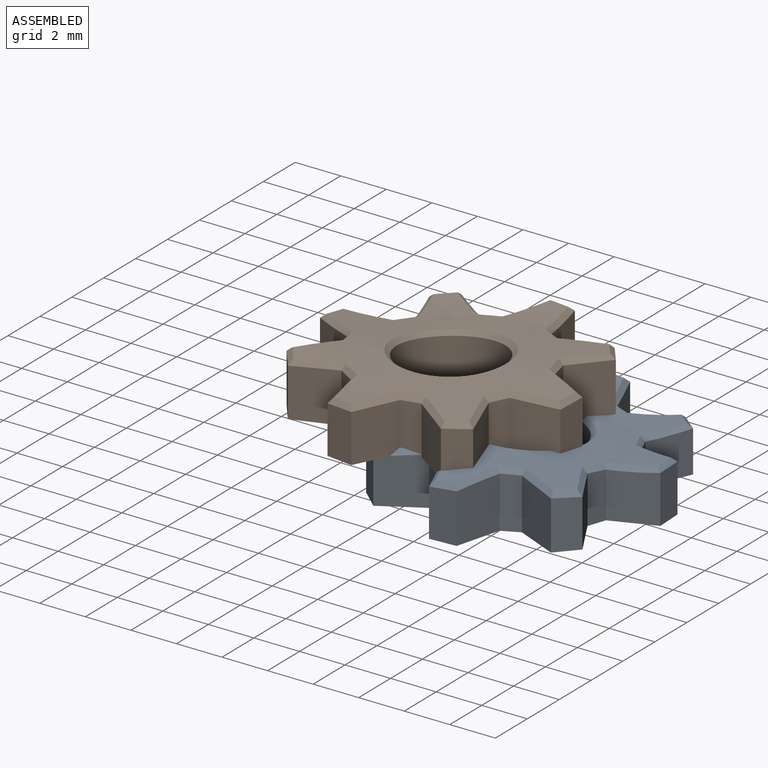
[diagram: assembled view]
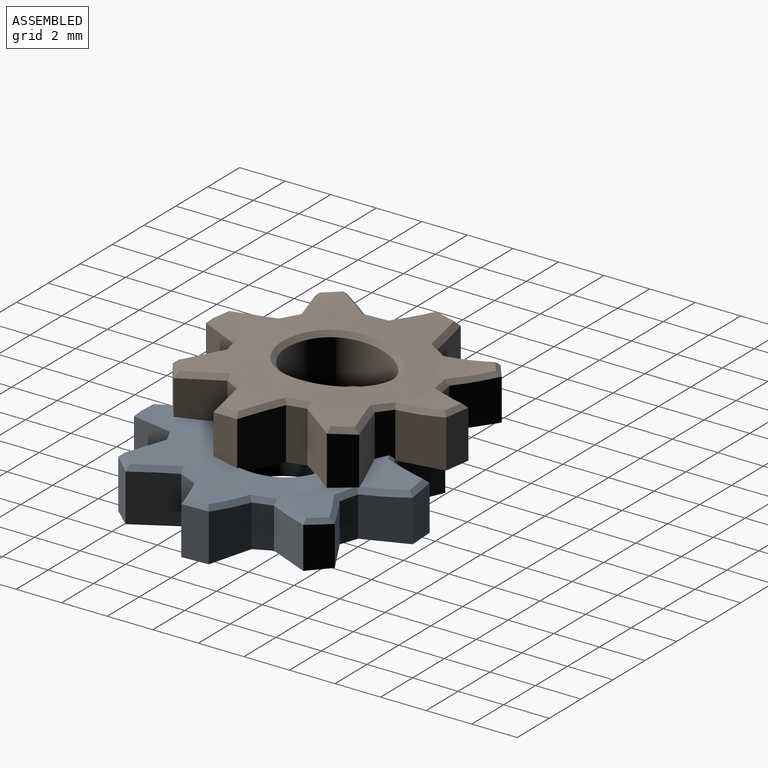
[diagram: assembled view, second angle]
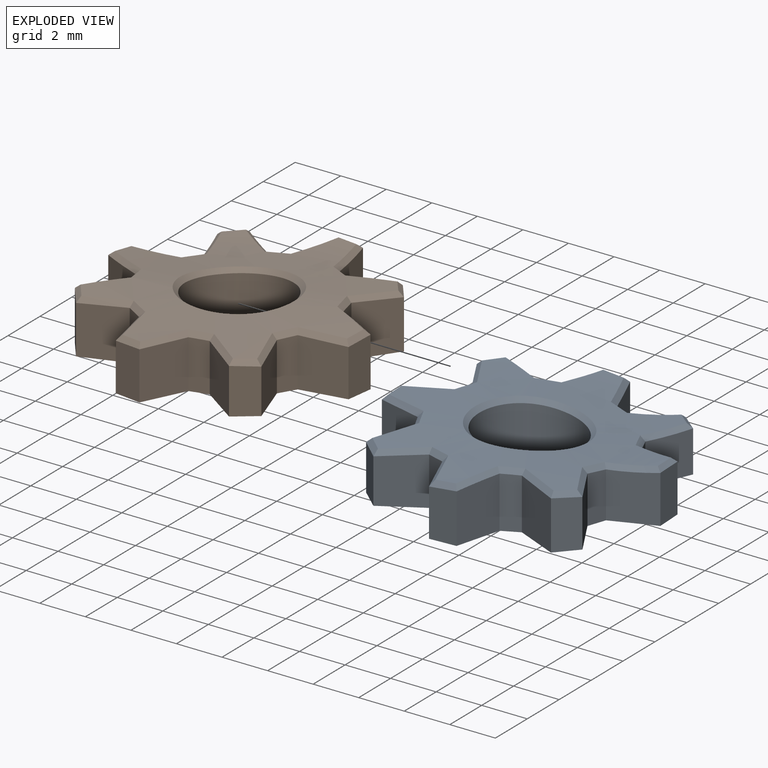
[diagram: exploded view]
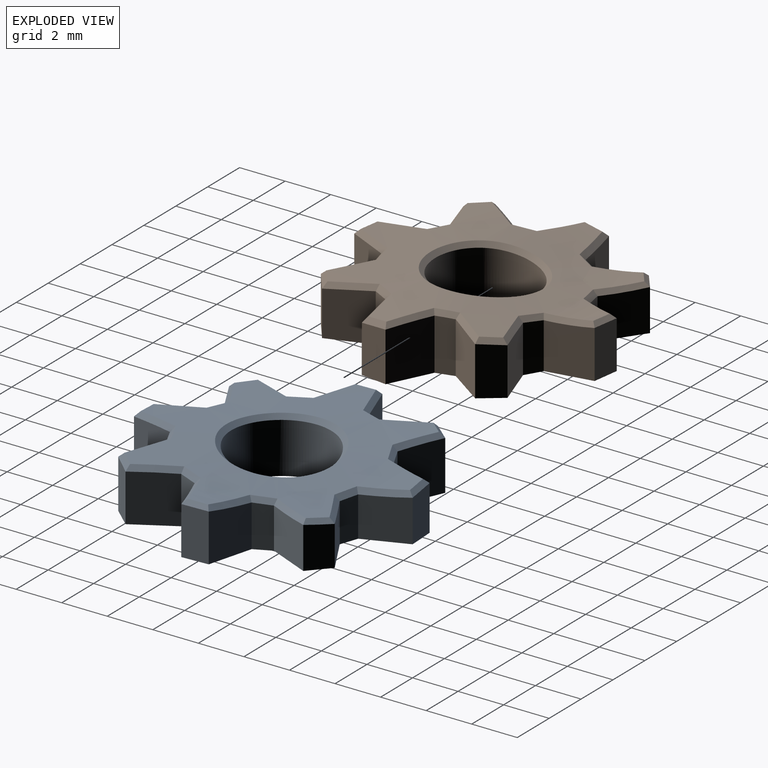
[diagram: exploded view, second angle]
FCSTD DOCUMENT  (FreeCAD 0.19R24212 (Git))
Label: logo 3d asm4
License: Creative Commons Attribution
LicenseURL: http://creativecommons.org/licenses/by/4.0/
objects: PartDesign::CoordinateSystem×5, Part::Feature×3, App::DocumentObjectGroup×2, App::FeaturePython×1, Sketcher::SketchObject×1, App::Link×1, PartDesign::FeatureBase×1, App::Part×1, PartDesign::Body×1
note: 11 computed .brp shape members not serialized (recipe doc carries the construction recipe); baked Part::Feature solids carry a one-line shape summary decoded from their .brp

FEATURE [PartDesign::CoordinateSystem] LCS_Origin
  AttacherType = Attacher::AttachEngine3D
  MapMode = 2
  Support = -> [X_Axis]
FEATURE [App::DocumentObjectGroup] Constraints
FEATURE [App::FeaturePython] Variables  # WARN: FeaturePython — macro-defined, semantics opaque (R4)
  rotation = 259
FEATURE [Part::Feature] Chamfer001001
  shape: bbox 20.43 x 20.68 x 2.715 mm, 68 faces (baked)
FEATURE [PartDesign::CoordinateSystem] LCS_0
  AttacherType = Attacher::AttachEngine3D
  MapMode = 2
  Support = -> [X_Axis001]
FEATURE [Sketcher::SketchObject] Sketch_1
  AttachmentOffset = pos=(0,0,2) rot=(0,0,1;0rad)
  FullyConstrained = true
  MapMode = 5
  Placement = pos=(0,0,2) rot=(0,0,1;0rad)
  Support = -> [XY_Plane]
  expr: Constraints[2] = Variables.rotation
  sketch-geometry (1):
    g0: LineSegment StartX=9.5 StartY=5.94137 StartZ=0 EndX=9.30919 EndY=4.95974 EndZ=0
  constraints (4):
    c: DistanceX(g0) = 9.5
    c: DistanceY(g0) = 5.94137
    c: Angle(g0) = 4.5204
    c: Distance(g0) = 1
FEATURE [App::Link] Body001
  AssemblyType = Asm4EE
  AttachedBy = #Local_CS
  AttachedTo = Parent Assembly#LCS_2
  AttachmentOffset = pos=(0,0,0) rot=(1,0,0;4.71239rad)
  LinkPlacement = pos=(12.848,-7.90547,2) rot=(0,0,-1;4.90437rad)
  LinkedObject = -> Body
  Placement = pos=(12.848,-7.90547,2) rot=(0,0,-1;4.90437rad)
  expr: Placement = LCS_2.Placement * AttachmentOffset * Local_CS.Placement ^ -1
FEATURE [PartDesign::CoordinateSystem] LCS_2
  AttacherType = Attacher::AttachEngine3D
  MapMode = 7
  Placement = pos=(9.5,5.94137,2) rot=(0.067929,0.705473,0.705473;3.00594rad)
  Support = -> [Sketch_1]
FEATURE [Part::Feature] Fillet002
  shape: bbox 10.79 x 18.77 x 2.834 mm, 42 faces (baked)
FEATURE [Part::Feature] Chamfer001001002  label="Chamfer001001003"
  shape: bbox 20.43 x 20.68 x 2.715 mm, 68 faces (baked)
FEATURE [PartDesign::FeatureBase] BaseFeature
  BaseFeature = -> Chamfer001001002
FEATURE [PartDesign::CoordinateSystem] LCS_1
  AttacherType = Attacher::AttachEngine3D
  MapMode = 11
  Placement = pos=(12.9536,5.92863,0) rot=(0,0,1;1.5708rad)
  Support = -> [BaseFeature]
FEATURE [App::Part] Model
  Configuration = 0
  Group = -> [LCS_Origin,Constraints,Variables,LCS_1,Sketch_1,Body001,LCS_2]
  Origin = -> Origin
  Type = Assembly4 Model
FEATURE [PartDesign::CoordinateSystem] Local_CS
  AttacherType = Attacher::AttachEngine3D
  MapMode = 11
  Placement = pos=(12.9536,5.92863,0) rot=(0,0,1;1.5708rad)
  Support = -> [BaseFeature]
FEATURE [PartDesign::Body] Body
  BaseFeature = -> Chamfer001001002
  Group = -> [BaseFeature,LCS_0,Local_CS]
  Origin = -> Origin001
  Tip = -> BaseFeature
FEATURE [App::DocumentObjectGroup] Parts
  Group = -> [Body]
